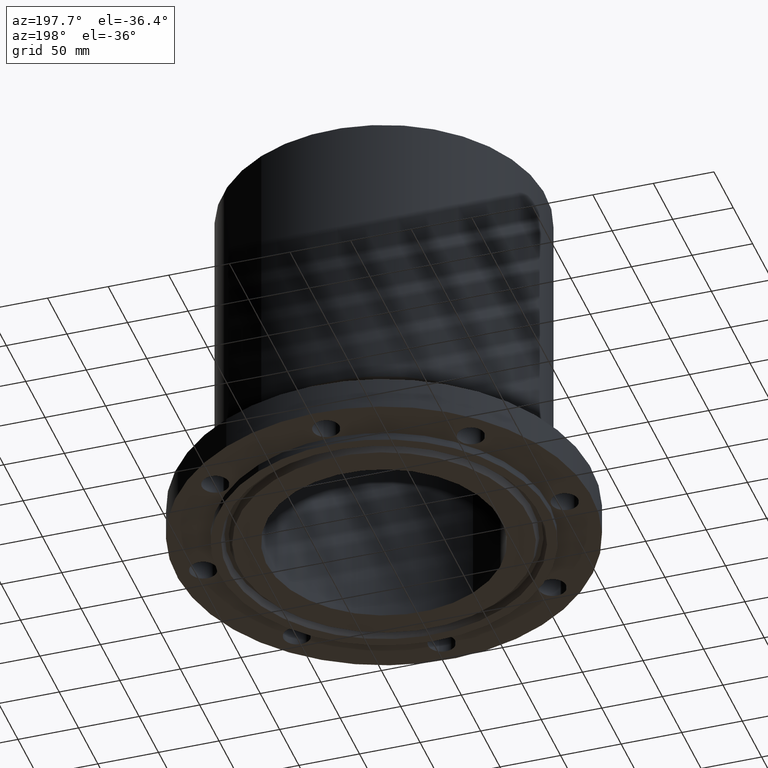
[diagram: clean part render]
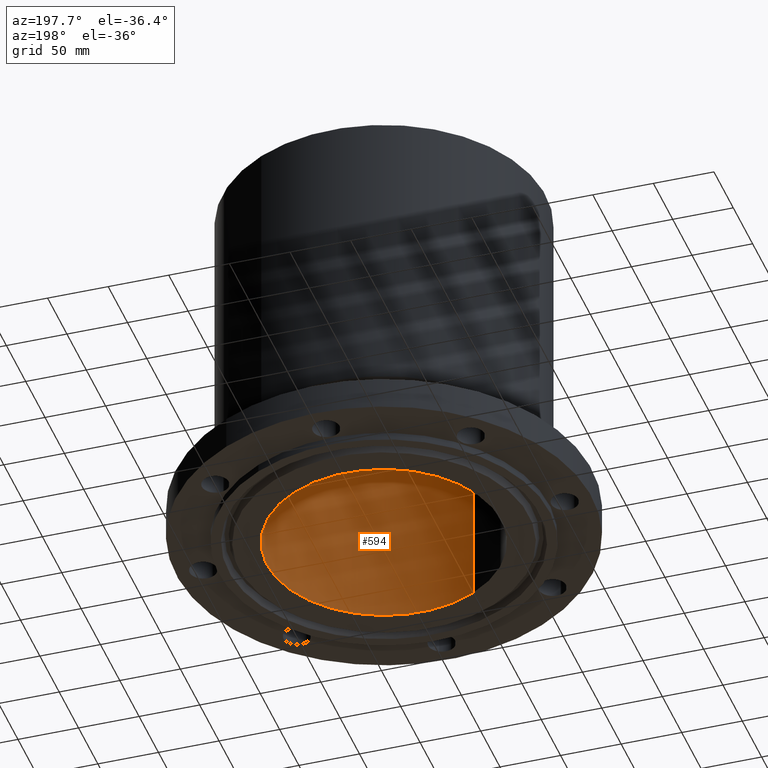
[diagram: same view with one face highlighted and labeled with its STEP entity id]
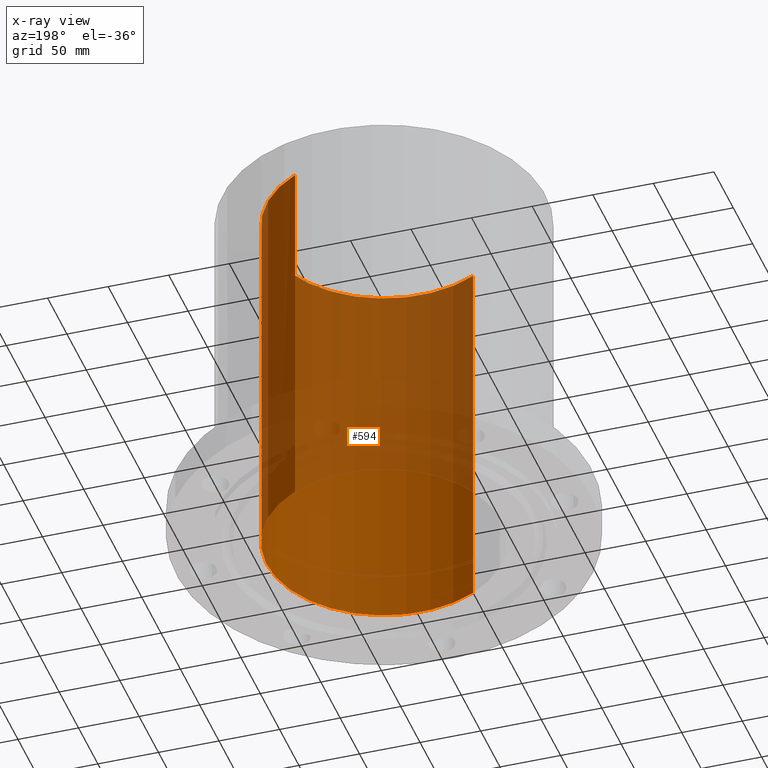
[diagram: x-ray of the same camera — body ghosted, the highlighted face saturated]
A machine part, auxiliary view. The second image highlights one B-rep face of the part: STEP entity #594.
The next image is the same camera in x-ray: the body ghosted, the highlighted face saturated — about 58% of this face is hidden behind the body in this view.
In plain terms, the highlighted cylindrical surface (partial cylindrical patch) has radius 96.774 mm, axis along (0, 0, -1).
Its self-contained STEP definition (entity closure, byte-faithful):
#556=AXIS2_PLACEMENT_3D('Circle Axis2P3D',#554,#555,$) ;
#567=AXIS2_PLACEMENT_3D('Cylinder Axis2P3D',#564,#565,#566) ;
#578=AXIS2_PLACEMENT_3D('Circle Axis2P3D',#576,#577,$) ;
#549=CARTESIAN_POINT('Vertex',(-1.82661130209,-3.34358956082,11.9375)) ;
#551=CARTESIAN_POINT('Vertex',(1.82661130209,3.34358956082,11.9375)) ;
#554=CARTESIAN_POINT('Axis2P3D Location',(0.,0.,11.9375)) ;
#564=CARTESIAN_POINT('Axis2P3D Location',(0.,0.,5.84375000002)) ;
#569=CARTESIAN_POINT('Line Origine',(1.82661130209,3.34358956082,5.84375000002)) ;
#573=CARTESIAN_POINT('Vertex',(1.82661130209,3.34358956082,-0.250000000001)) ;
#576=CARTESIAN_POINT('Axis2P3D Location',(0.,0.,-0.250000000001)) ;
#580=CARTESIAN_POINT('Vertex',(-1.82661130209,-3.34358956082,-0.250000000001)) ;
#583=CARTESIAN_POINT('Line Origine',(-1.82661130209,-3.34358956082,5.84375000002)) ;
#555=DIRECTION('Axis2P3D Direction',(0.,0.,-0.0393700787402)) ;
#565=DIRECTION('Axis2P3D Direction',(0.,0.,-0.0393700787402)) ;
#566=DIRECTION('Axis2P3D XDirection',(-0.0188750212049,-0.0345504945626,0.)) ;
#570=DIRECTION('Vector Direction',(0.,0.,-0.0393700787402)) ;
#577=DIRECTION('Axis2P3D Direction',(0.,0.,-0.0393700787402)) ;
#584=DIRECTION('Vector Direction',(0.,0.,-0.0393700787402)) ;
#571=VECTOR('Line Direction',#570,0.0393700787402) ;
#585=VECTOR('Line Direction',#584,0.0393700787402) ;
#589=ORIENTED_EDGE('',*,*,#558,.F.) ;
#590=ORIENTED_EDGE('',*,*,#575,.T.) ;
#591=ORIENTED_EDGE('',*,*,#582,.T.) ;
#592=ORIENTED_EDGE('',*,*,#587,.F.) ;
#594=ADVANCED_FACE('PartBody',(#593),#568,.F.) ;
#557=CIRCLE('generated circle',#556,3.81000000002) ;
#579=CIRCLE('generated circle',#578,3.81000000002) ;
#568=CYLINDRICAL_SURFACE('generated cylinder',#567,3.81000000002) ;
#558=EDGE_CURVE('',#552,#550,#557,.T.) ;
#575=EDGE_CURVE('',#552,#574,#572,.T.) ;
#582=EDGE_CURVE('',#574,#581,#579,.T.) ;
#587=EDGE_CURVE('',#550,#581,#586,.T.) ;
#588=EDGE_LOOP('',(#589,#590,#591,#592)) ;
#593=FACE_OUTER_BOUND('',#588,.T.) ;
#572=LINE('Line',#569,#571) ;
#586=LINE('Line',#583,#585) ;
#550=VERTEX_POINT('',#549) ;
#552=VERTEX_POINT('',#551) ;
#574=VERTEX_POINT('',#573) ;
#581=VERTEX_POINT('',#580) ;